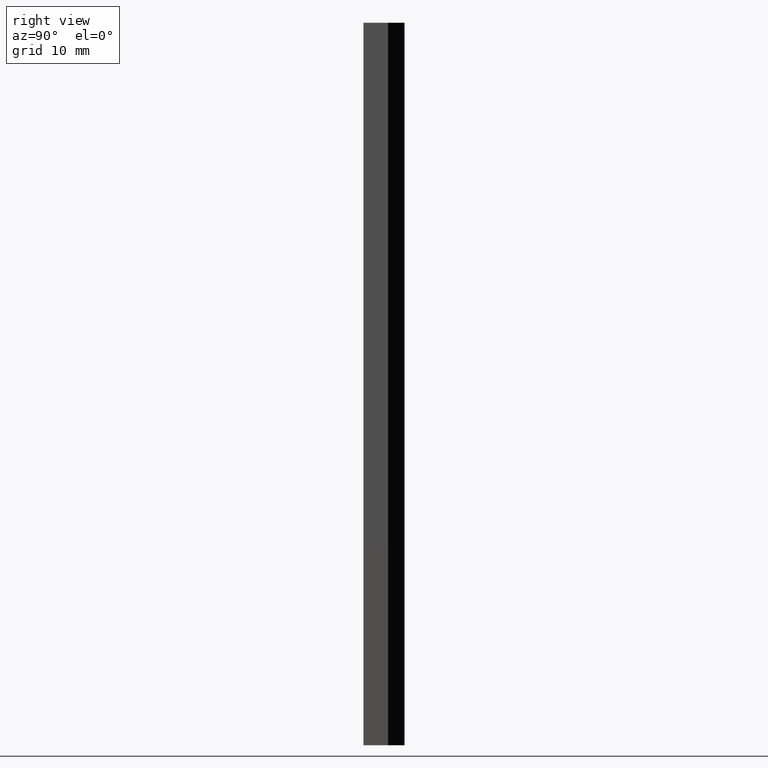
[diagram: clean part render]
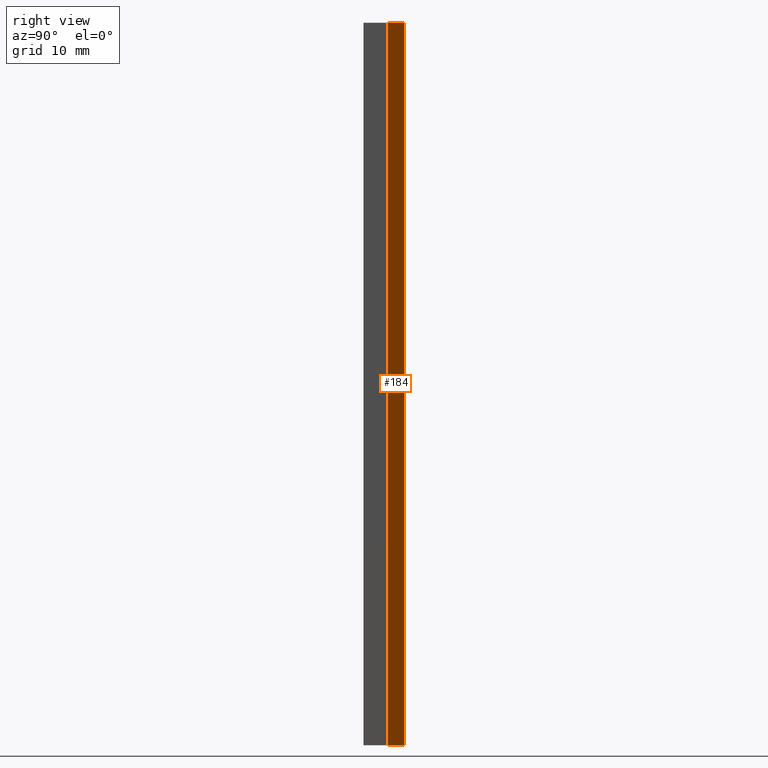
[diagram: same view with one face highlighted and labeled with its STEP entity id]
A machine part, right view. The second image highlights one B-rep face of the part: STEP entity #184.
In plain terms, the highlighted planar face has unit normal (0.7071, 0.7071, 0).
Its self-contained STEP definition (entity closure, byte-faithful):
#24=LINE('',#284,#42);
#25=LINE('',#287,#43);
#26=LINE('',#289,#44);
#27=LINE('',#290,#45);
#42=VECTOR('',#234,88.);
#43=VECTOR('',#237,2.82842712474619);
#44=VECTOR('',#238,2.82842712474619);
#45=VECTOR('',#239,88.);
#54=PLANE('',#200);
#70=FACE_OUTER_BOUND('',#84,.T.);
#84=EDGE_LOOP('',(#151,#152,#153,#154));
#105=VERTEX_POINT('',#280);
#106=VERTEX_POINT('',#282);
#107=VERTEX_POINT('',#286);
#108=VERTEX_POINT('',#288);
#124=EDGE_CURVE('',#105,#106,#24,.T.);
#125=EDGE_CURVE('',#107,#105,#25,.T.);
#126=EDGE_CURVE('',#108,#106,#26,.T.);
#127=EDGE_CURVE('',#107,#108,#27,.T.);
#151=ORIENTED_EDGE('',*,*,#125,.T.);
#152=ORIENTED_EDGE('',*,*,#124,.T.);
#153=ORIENTED_EDGE('',*,*,#126,.F.);
#154=ORIENTED_EDGE('',*,*,#127,.F.);
#184=ADVANCED_FACE('',(#70),#54,.T.);
#200=AXIS2_PLACEMENT_3D('',#285,#235,#236);
#234=DIRECTION('',(0.,0.,1.));
#235=DIRECTION('center_axis',(0.707106781186547,0.707106781186548,0.));
#236=DIRECTION('ref_axis',(-0.707106781186548,0.707106781186547,0.));
#237=DIRECTION('',(-0.707106781186548,0.707106781186547,0.));
#238=DIRECTION('',(-0.707106781186548,0.707106781186547,0.));
#239=DIRECTION('',(0.,0.,1.));
#280=CARTESIAN_POINT('',(4.5,5.,0.));
#282=CARTESIAN_POINT('',(4.5,5.,88.));
#284=CARTESIAN_POINT('',(4.5,5.,0.));
#285=CARTESIAN_POINT('Origin',(6.5,3.,0.));
#286=CARTESIAN_POINT('',(6.5,3.,0.));
#287=CARTESIAN_POINT('',(6.5,3.,0.));
#288=CARTESIAN_POINT('',(6.5,3.,88.));
#289=CARTESIAN_POINT('',(6.5,3.,88.));
#290=CARTESIAN_POINT('',(6.5,3.,0.));